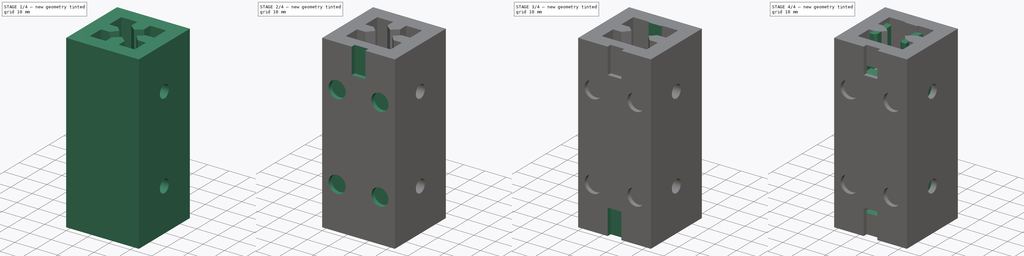
[diagram: build sequence overview — one tinted view per stage of 4, left to right]
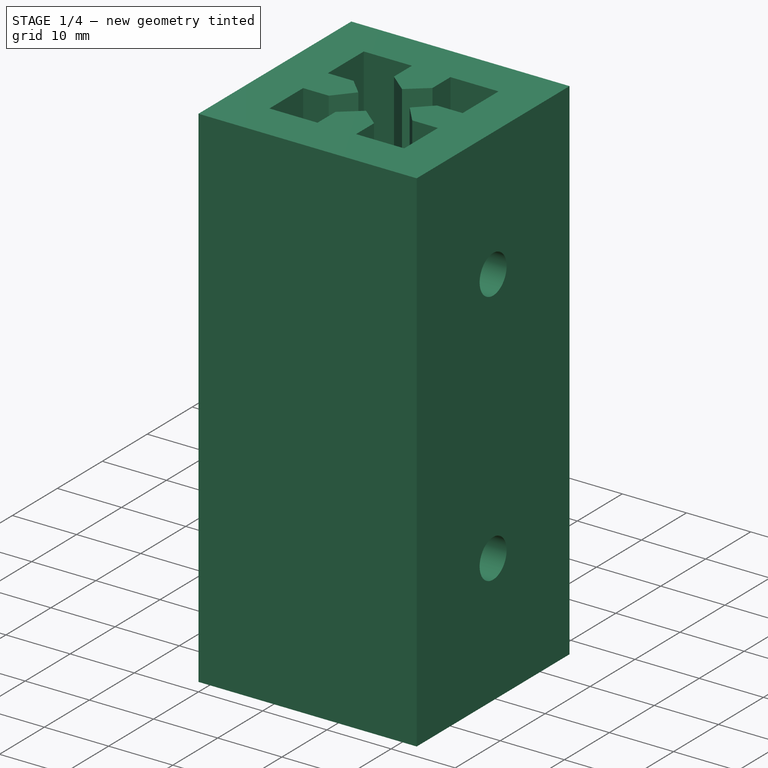
[diagram: stage 1 of 4 — iso view after this stage's code; geometry added in this stage tinted green]
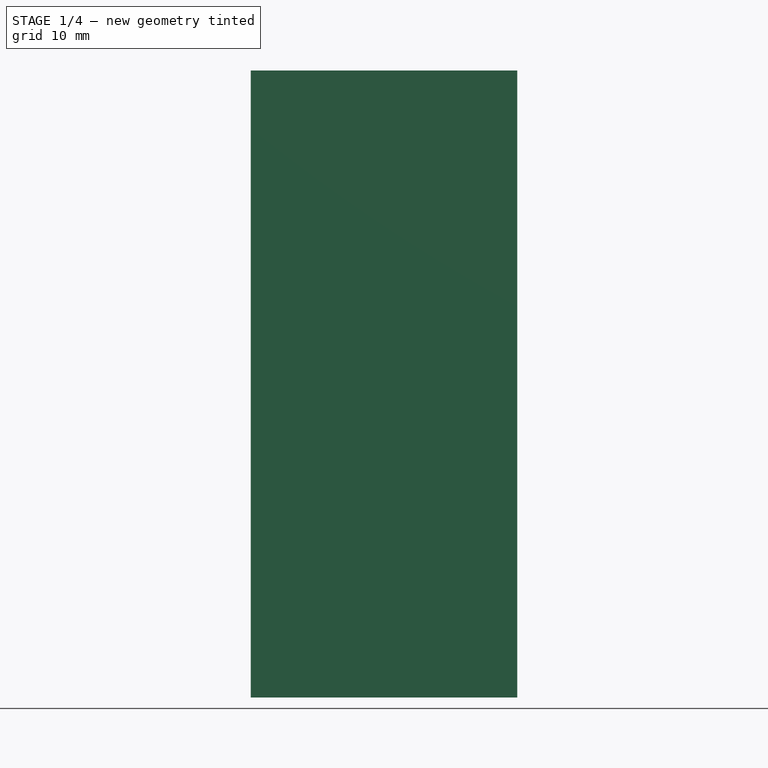
[diagram: stage 1 of 4 — front view after this stage's code; geometry added in this stage tinted green]
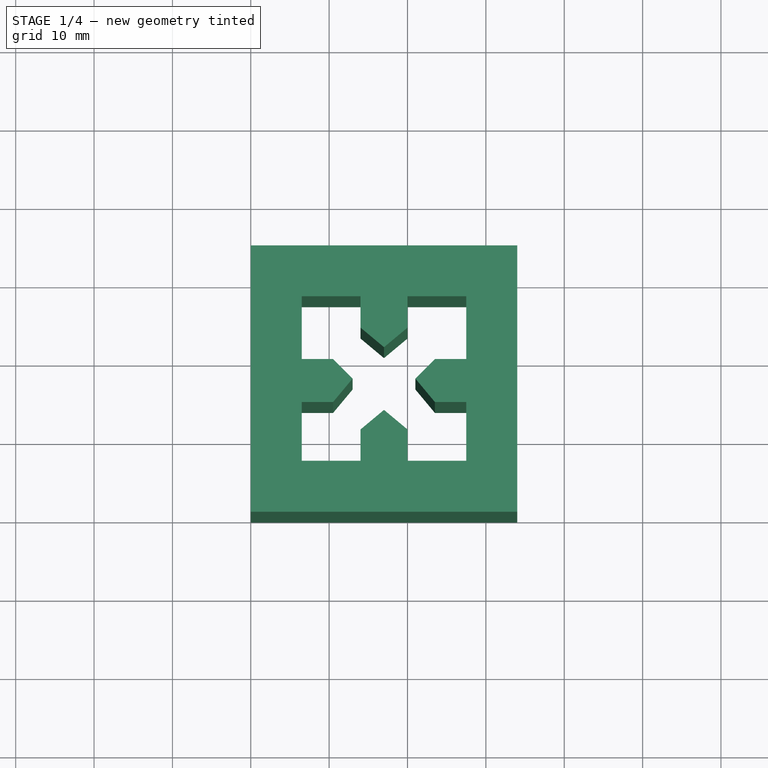
[diagram: stage 1 of 4 — top view after this stage's code; geometry added in this stage tinted green]
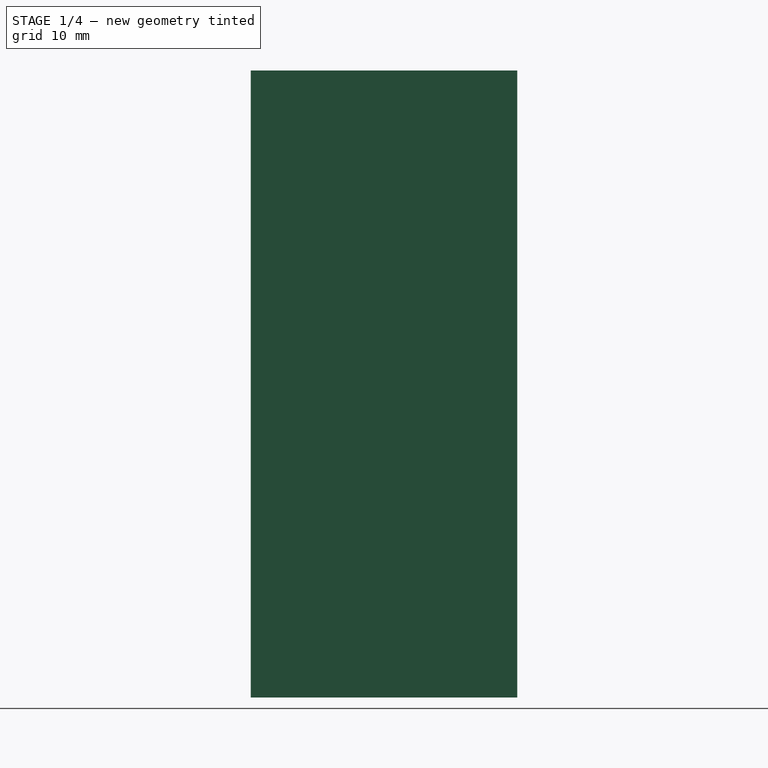
[diagram: stage 1 of 4 — right view after this stage's code; geometry added in this stage tinted green]
FCSTD DOCUMENT  (FreeCAD 0.19R17798 (Git))
Label: ts4c
License: All rights reserved
LicenseURL: http://en.wikipedia.org/wiki/All_rights_reserved
objects: Sketcher::SketchObject×11, PartDesign::Pocket×10, Part::Feature×2, PartDesign::Pad×1, PartDesign::Chamfer×1, PartDesign::Body×1, Part::Fuse×1, Part::MultiFuse×1
note: 39 computed .brp shape members not serialized (recipe doc carries the construction recipe); baked Part::Feature solids carry a one-line shape summary decoded from their .brp

FEATURE [Sketcher::SketchObject] Sketch
  MapMode = 5
  Support = -> [XY_Plane]
  sketch-geometry (4):
    g0: LineSegment StartX=0 StartY=34 StartZ=0 EndX=34 EndY=34 EndZ=0
    g1: LineSegment StartX=34 StartY=34 StartZ=0 EndX=34 EndY=0 EndZ=0
    g2: LineSegment StartX=34 StartY=0 StartZ=0 EndX=0 EndY=0 EndZ=0
    g3: LineSegment StartX=0 StartY=0 StartZ=0 EndX=0 EndY=34 EndZ=0
  constraints (11):
    c: Coincident(g0,g1)
    c: Coincident(g1,g2)
    c: Coincident(g2,g3)
    c: Coincident(g3,g0)
    c: Horizontal(g0)
    c: Horizontal(g2)
    c: Vertical(g1)
    c: Vertical(g3)
    c: DistanceX(g0,g0) = 34
    c: DistanceY(g3,g3) = 34
    c: Coincident(g2,g-1)
FEATURE [PartDesign::Pad] Pad
  Length = 80
  Length2 = 100
  Profile = -> Sketch
  Type = 0
FEATURE [Sketcher::SketchObject] Sketch001
  MapMode = 5
  Placement = pos=(0,0,80) rot=(0,0,1;0rad)
  Support = -> [Pad]
  sketch-geometry (24):
    g0: LineSegment StartX=6.5 StartY=27.5 StartZ=0 EndX=14 EndY=27.5 EndZ=0
    g1: LineSegment StartX=14 StartY=27.5 StartZ=0 EndX=14 EndY=23.5 EndZ=0
    g2: LineSegment StartX=14 StartY=23.5 StartZ=0 EndX=17 EndY=21 EndZ=0
    g3: LineSegment StartX=17 StartY=21 StartZ=0 EndX=20 EndY=23.5 EndZ=0
    g4: LineSegment StartX=20 StartY=23.5 StartZ=0 EndX=20 EndY=27.5 EndZ=0
    g5: LineSegment StartX=20 StartY=27.5 StartZ=0 EndX=27.5 EndY=27.5 EndZ=0
    g6: LineSegment StartX=27.5 StartY=27.5 StartZ=0 EndX=27.5 EndY=19.5 EndZ=0
    g7: LineSegment StartX=27.5 StartY=19.5 StartZ=0 EndX=23.5 EndY=19.5 EndZ=0
    g8: LineSegment StartX=23.5 StartY=19.5 StartZ=0 EndX=21 EndY=17 EndZ=0
    g9: LineSegment StartX=21 StartY=17 StartZ=0 EndX=23.5 EndY=14 EndZ=0
    g10: LineSegment StartX=23.5 StartY=14 StartZ=0 EndX=27.5 EndY=14 EndZ=0
    g11: LineSegment StartX=27.5 StartY=14 StartZ=0 EndX=27.5 EndY=6.5 EndZ=0
    g12: LineSegment StartX=27.5 StartY=6.5 StartZ=0 EndX=20 EndY=6.5 EndZ=0
    g13: LineSegment StartX=20 StartY=6.5 StartZ=0 EndX=20 EndY=10.5 EndZ=0
    g14: LineSegment StartX=20 StartY=10.5 StartZ=0 EndX=17 EndY=13 EndZ=0
    g15: LineSegment StartX=17 StartY=13 StartZ=0 EndX=14 EndY=10.5 EndZ=0
    g16: LineSegment StartX=14 StartY=10.5 StartZ=0 EndX=14 EndY=6.5 EndZ=0
    g17: LineSegment StartX=14 StartY=6.5 StartZ=0 EndX=6.5 EndY=6.5 EndZ=0
    g18: LineSegment StartX=6.5 StartY=6.5 StartZ=0 EndX=6.5 EndY=14 EndZ=0
    g19: LineSegment StartX=6.5 StartY=14 StartZ=0 EndX=10.5 EndY=14 EndZ=0
    g20: LineSegment StartX=10.5 StartY=14 StartZ=0 EndX=13 EndY=17 EndZ=0
    g21: LineSegment StartX=13 StartY=17 StartZ=0 EndX=10.5 EndY=19.5 EndZ=0
    g22: LineSegment StartX=10.5 StartY=19.5 StartZ=0 EndX=6.5 EndY=19.5 EndZ=0
    g23: LineSegment StartX=6.5 StartY=19.5 StartZ=0 EndX=6.5 EndY=27.5 EndZ=0
  constraints (72):
    c: Coincident(g0,g1)
    c: Coincident(g1,g2)
    c: Coincident(g2,g3)
    c: Coincident(g3,g4)
    c: Coincident(g4,g5)
    c: Coincident(g5,g6)
    c: Coincident(g6,g7)
    c: Coincident(g7,g8)
    c: Coincident(g8,g9)
    c: Coincident(g9,g10)
    c: Coincident(g10,g11)
    c: Coincident(g11,g12)
    c: Coincident(g12,g13)
    c: Coincident(g13,g14)
    c: Coincident(g14,g15)
    c: Coincident(g15,g16)
    c: Coincident(g16,g17)
    c: Coincident(g17,g18)
    c: Coincident(g18,g19)
    c: Coincident(g19,g20)
    c: Coincident(g20,g21)
    c: Coincident(g21,g22)
    c: Coincident(g22,g23)
    c: Coincident(g23,g0)
    c: DistanceY(g-1,g0) = 27.5
    c: DistanceY(g0,g0) = 0
    c: DistanceY(g4,g0) = 0
    c: DistanceY(g5,g5) = 0
    c: DistanceX(g-1,g17) = 6.5
    c: DistanceY(g-1,g17) = 6.5
    c: DistanceX(g-1,g0) = 6.5
    c: DistanceX(g-1,g5) = 27.5
    c: DistanceY(g11,g17) = 0
    c: DistanceY(g12,g17) = 0
    c: DistanceY(g16,g17) = 0
    c: DistanceX(g5,g11) = 0
    c: DistanceX(g5,g6) = 0
    c: DistanceX(g5,g10) = 0
    c: DistanceX(g0,g0) = 7.5
    c: DistanceX(g0,g4) = 6
    c: DistanceX(g22,g0) = 0
    c: DistanceX(g22,g1) = 7.5
    c: DistanceX(g1,g3) = 6
    c: DistanceX(g17,g2) = 10.5
    c: DistanceY(g17,g22) = 13
    c: DistanceY(g17,g18) = 7.5
    c: DistanceY(g22,g21) = 0
    c: DistanceY(g21,g7) = 0
    c: DistanceX(g17,g16) = 7.5
    c: DistanceX(g16,g12) = 6
    c: DistanceX(g15,g16) = 0
    c: DistanceX(g12,g13) = 0
    c: DistanceY(g17,g15) = 4
    c: DistanceX(g17,g18) = 0
    c: DistanceY(g15,g13) = 0
    c: DistanceY(g17,g14) = 6.5
    c: DistanceX(g17,g14) = 10.5
    c: DistanceX(g22,g21) = 4
    c: DistanceX(g19,g21) = 0
    c: DistanceX(g22,g20) = 6.5
    c: DistanceY(g17,g20) = 10.5
    c: DistanceY(g19,g10) = 0
    c: DistanceY(g18,g9) = 0
    c: DistanceY(g18,g19) = 0
    c: DistanceY(g21,g6) = 0
    c: DistanceY(g1,g0) = 4
    c: DistanceY(g3,g1) = 0
    c: DistanceY(g2,g0) = 6.5
    c: DistanceX(g7,g6) = 4
    c: DistanceX(g9,g7) = 0
    c: DistanceX(g8,g6) = 6.5
    c: DistanceY(g20,g8) = 0
FEATURE [PartDesign::Pocket] Pocket
  BaseFeature = -> Pad
  Length = 80
  Length2 = 100
  Profile = -> Sketch001
  Type = 0
FEATURE [Sketcher::SketchObject] Sketch002
  MapMode = 5
  Placement = pos=(0,0,0) rot=(0.57735,-0.57735,-0.57735;2.0944rad)
  Support = -> [Pocket]
  sketch-geometry (2):
    g0: Circle CenterX=-17 CenterY=60 CenterZ=0 NormalX=0 NormalY=0 NormalZ=1 AngleXU=0 Radius=3
    g1: Circle CenterX=-17 CenterY=20 CenterZ=0 NormalX=0 NormalY=0 NormalZ=1 AngleXU=0 Radius=3
  constraints (6):
    c: DistanceX(g1,g-1) = 17
    c: DistanceY(g-1,g1) = 20
    c: DistanceX(g0,g1) = 0
    c: DistanceY(g-1,g0) = 60
    c: Radius(g0) = 3
    c: Radius(g1) = 3
FEATURE [PartDesign::Pocket] Pocket001
  BaseFeature = -> Pocket
  Length = 4
  Length2 = 100
  Profile = -> Sketch002
  Type = 0
FEATURE [Sketcher::SketchObject] Sketch003
  MapMode = 5
  Placement = pos=(34,0,0) rot=(0.57735,0.57735,0.57735;2.0944rad)
  Support = -> [Pocket001]
  sketch-geometry (2):
    g0: Circle CenterX=17 CenterY=60 CenterZ=0 NormalX=0 NormalY=0 NormalZ=1 AngleXU=0 Radius=3
    g1: Circle CenterX=17 CenterY=20 CenterZ=0 NormalX=0 NormalY=0 NormalZ=1 AngleXU=0 Radius=3
  constraints (6):
    c: DistanceX(g-1,g1) = 17
    c: DistanceX(g0,g1) = 0
    c: DistanceY(g-1,g1) = 20
    c: DistanceY(g-1,g0) = 60
    c: Radius(g0) = 3
    c: Radius(g1) = 3
FEATURE [PartDesign::Pocket] Pocket002
  BaseFeature = -> Pocket001
  Length = 4
  Length2 = 100
  Profile = -> Sketch003
  Type = 0
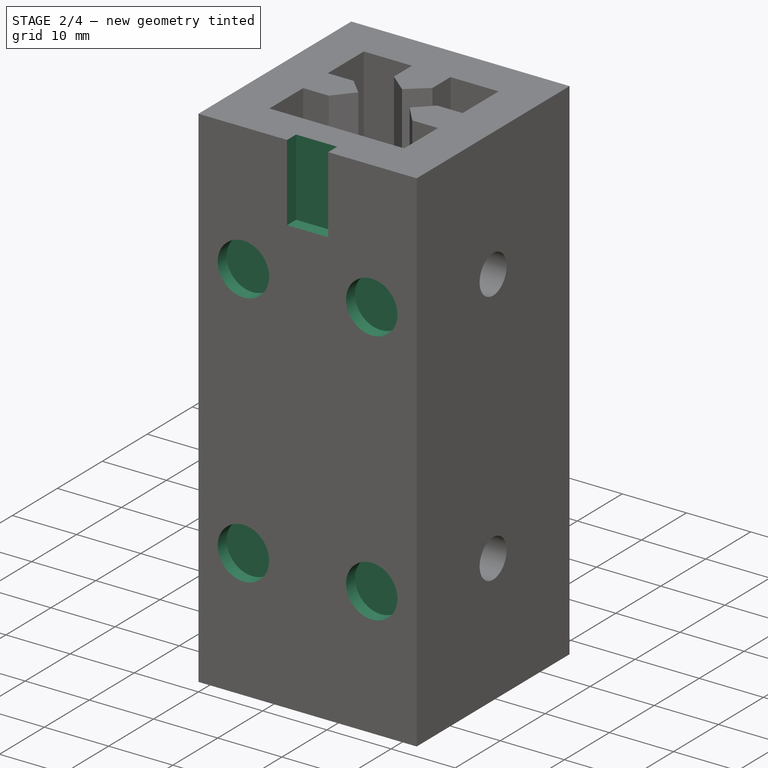
[diagram: stage 2 of 4 — iso view after this stage's code; geometry added in this stage tinted green]
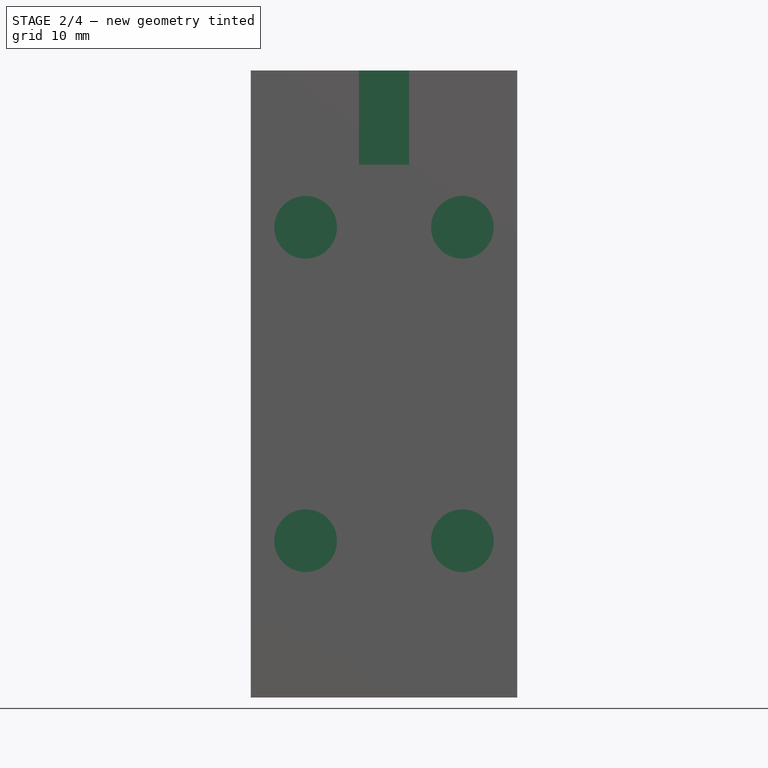
[diagram: stage 2 of 4 — front view after this stage's code; geometry added in this stage tinted green]
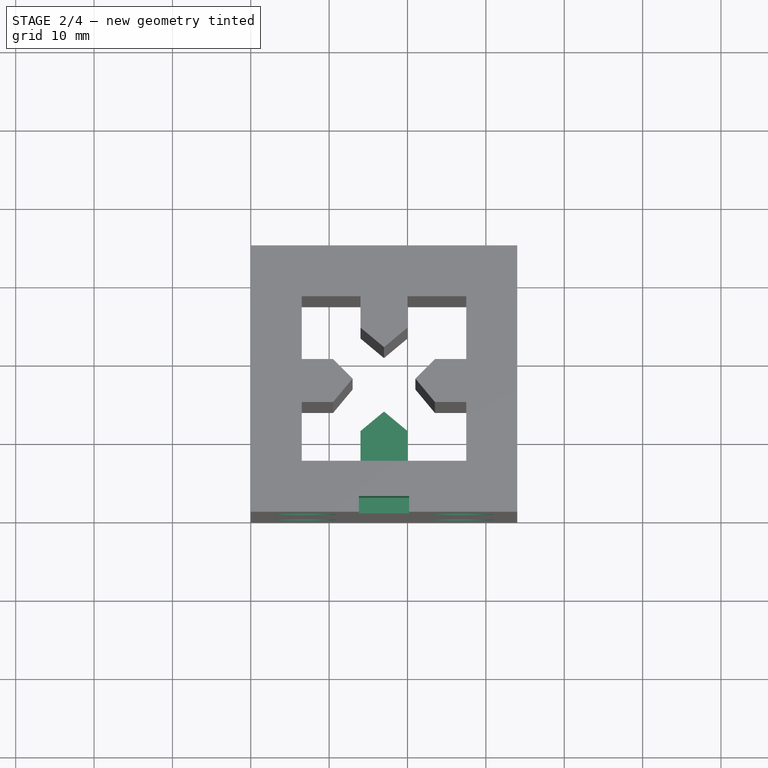
[diagram: stage 2 of 4 — top view after this stage's code; geometry added in this stage tinted green]
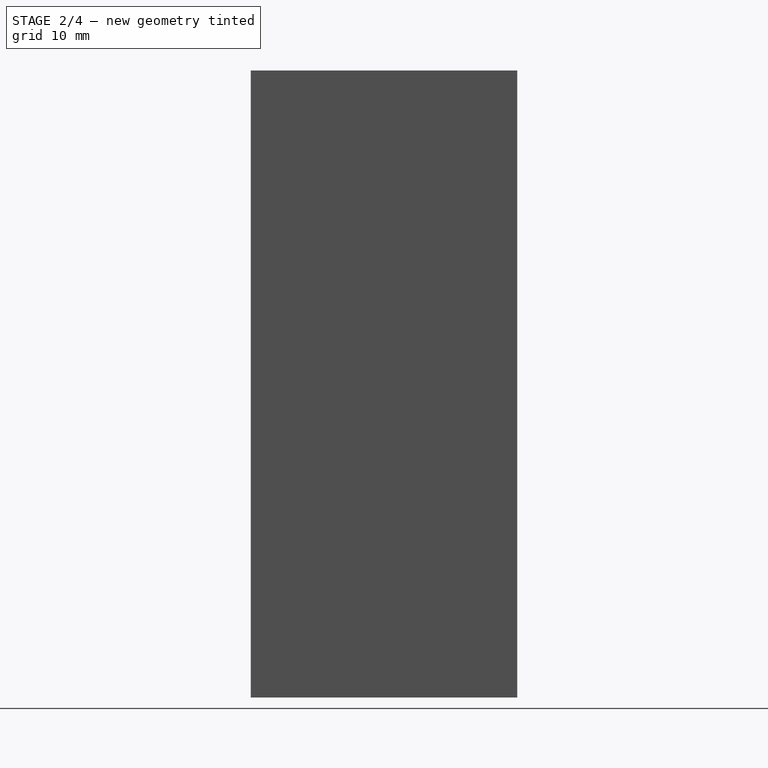
[diagram: stage 2 of 4 — right view after this stage's code; geometry added in this stage tinted green]
FEATURE [Sketcher::SketchObject] Sketch004
  MapMode = 5
  Placement = pos=(0,34,0) rot=(0,0.707107,0.707107;3.14159rad)
  Support = -> [Pocket002]
  sketch-geometry (4):
    g0: Circle CenterX=-27 CenterY=60 CenterZ=0 NormalX=0 NormalY=0 NormalZ=1 AngleXU=0 Radius=4
    g1: Circle CenterX=-7 CenterY=60 CenterZ=0 NormalX=0 NormalY=0 NormalZ=1 AngleXU=0 Radius=4
    g2: Circle CenterX=-27 CenterY=20 CenterZ=0 NormalX=0 NormalY=0 NormalZ=1 AngleXU=0 Radius=4
    g3: Circle CenterX=-7 CenterY=20 CenterZ=0 NormalX=0 NormalY=0 NormalZ=1 AngleXU=0 Radius=4
  constraints (12):
    c: DistanceY(g-1,g3) = 20
    c: DistanceY(g3,g2) = 0
    c: DistanceY(g-1,g1) = 60
    c: DistanceY(g1,g0) = 0
    c: DistanceX(g3,g-1) = 7
    c: DistanceX(g2,g3) = 20
    c: DistanceX(g1,g3) = 0
    c: DistanceX(g0,g2) = 0
    c: Radius(g0) = 4
    c: Radius(g1) = 4
    c: Radius(g3) = 4
    c: Radius(g2) = 4
FEATURE [PartDesign::Pocket] Pocket003
  BaseFeature = -> Pocket002
  Length = 2
  Length2 = 100
  Profile = -> Sketch004
  Type = 0
FEATURE [Sketcher::SketchObject] Sketch005
  MapMode = 5
  Placement = pos=(0,0,0) rot=(1,0,0;1.5708rad)
  Support = -> [Pocket003]
  sketch-geometry (4):
    g0: Circle CenterX=7 CenterY=60 CenterZ=0 NormalX=0 NormalY=0 NormalZ=1 AngleXU=0 Radius=4
    g1: Circle CenterX=27 CenterY=60 CenterZ=0 NormalX=0 NormalY=0 NormalZ=1 AngleXU=0 Radius=4
    g2: Circle CenterX=7 CenterY=20 CenterZ=0 NormalX=0 NormalY=0 NormalZ=1 AngleXU=0 Radius=4
    g3: Circle CenterX=27 CenterY=20 CenterZ=0 NormalX=0 NormalY=0 NormalZ=1 AngleXU=0 Radius=4
  constraints (12):
    c: DistanceY(g-1,g3) = 20
    c: DistanceY(g3,g2) = 0
    c: DistanceY(g-1,g0) = 60
    c: DistanceY(g0,g1) = 0
    c: DistanceX(g-1,g2) = 7
    c: DistanceX(g2,g0) = 0
    c: DistanceX(g2,g3) = 20
    c: DistanceX(g1,g3) = 0
    c: Radius(g0) = 4
    c: Equal(g0,g1)
    c: Equal(g0,g3)
    c: Equal(g0,g2)
FEATURE [PartDesign::Pocket] Pocket004
  BaseFeature = -> Pocket003
  Length = 2
  Length2 = 100
  Profile = -> Sketch005
  Type = 0
FEATURE [Sketcher::SketchObject] Sketch006
  MapMode = 5
  Placement = pos=(0,0,80) rot=(0,0,1;0rad)
  Support = -> [Pocket004]
  sketch-geometry (8):
    g0: LineSegment StartX=13.8 StartY=2 StartZ=0 EndX=20.2 EndY=2 EndZ=0
    g1: LineSegment StartX=20.2 StartY=2 StartZ=0 EndX=20.2 EndY=0 EndZ=0
    g2: LineSegment StartX=20.2 StartY=0 StartZ=0 EndX=13.8 EndY=0 EndZ=0
    g3: LineSegment StartX=13.8 StartY=0 StartZ=0 EndX=13.8 EndY=2 EndZ=0
    g4: LineSegment StartX=13.8 StartY=13.5 StartZ=0 EndX=20.2 EndY=13.5 EndZ=0
    g5: LineSegment StartX=20.2 StartY=13.5 StartZ=0 EndX=20.2 EndY=6.5 EndZ=0
    g6: LineSegment StartX=20.2 StartY=6.5 StartZ=0 EndX=13.8 EndY=6.5 EndZ=0
    g7: LineSegment StartX=13.8 StartY=6.5 StartZ=0 EndX=13.8 EndY=13.5 EndZ=0
  constraints (24):
    c: Coincident(g0,g1)
    c: Coincident(g1,g2)
    c: Coincident(g2,g3)
    c: Coincident(g3,g0)
    c: Horizontal(g0)
    c: Horizontal(g2)
    c: Vertical(g1)
    c: Vertical(g3)
    c: Coincident(g4,g5)
    c: Coincident(g5,g6)
    c: Coincident(g6,g7)
    c: Coincident(g7,g4)
    c: Horizontal(g4)
    c: Horizontal(g6)
    c: Vertical(g5)
    c: Vertical(g7)
    c: DistanceY(g3,g3) = 2
    c: DistanceX(g0,g0) = 6.4
    c: DistanceY(g-1,g2) = 0
    c: DistanceX(g6,g6) = 6.4
    c: DistanceY(g-1,g6) = 6.5
    c: DistanceX(g-1,g2) = 13.8
    c: DistanceX(g-1,g6) = 13.8
    c: DistanceY(g5,g5) = 7
FEATURE [PartDesign::Pocket] Pocket005
  BaseFeature = -> Pocket004
  Length = 12
  Length2 = 100
  Profile = -> Sketch006
  Type = 0
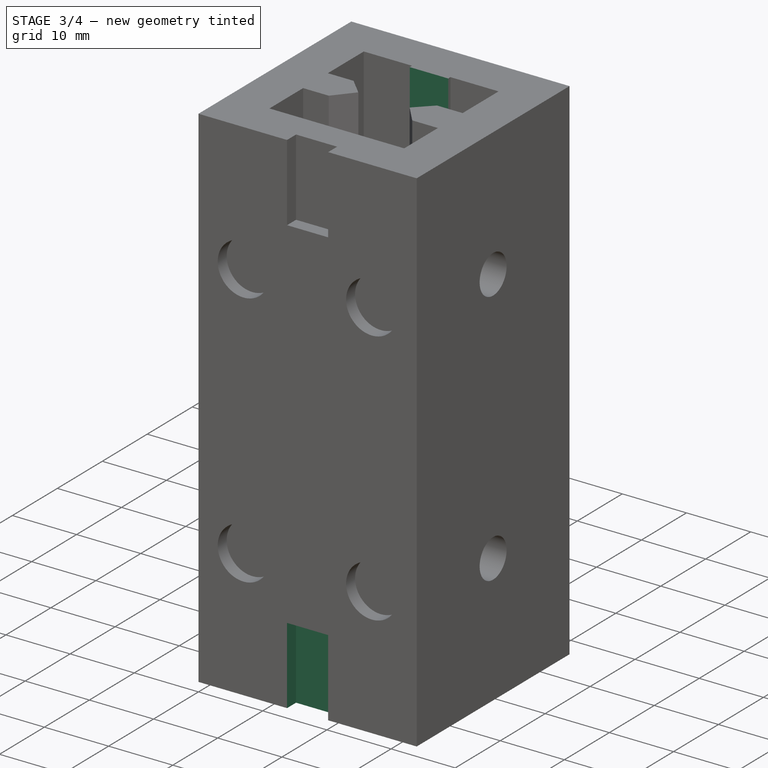
[diagram: stage 3 of 4 — iso view after this stage's code; geometry added in this stage tinted green]
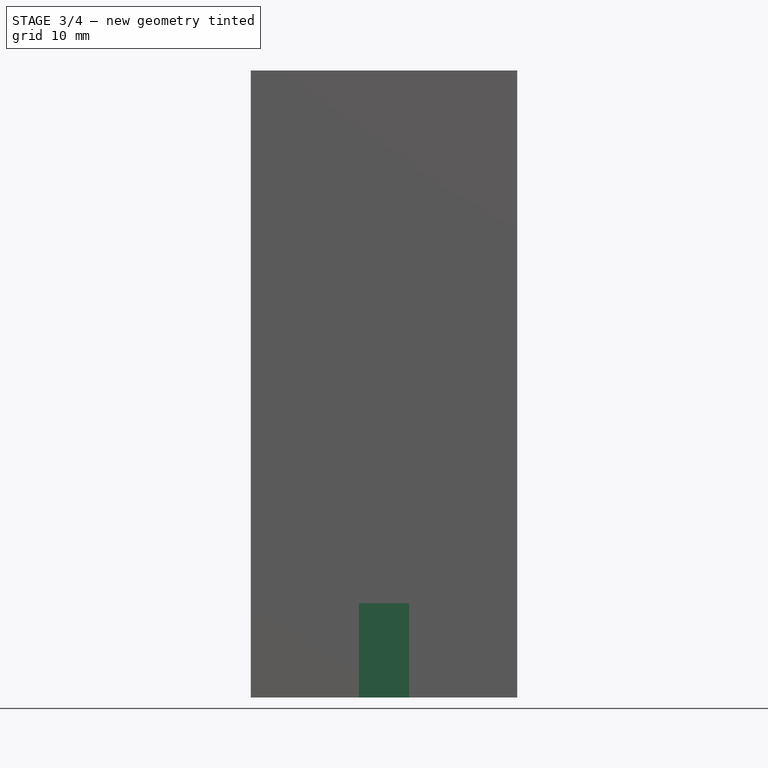
[diagram: stage 3 of 4 — front view after this stage's code; geometry added in this stage tinted green]
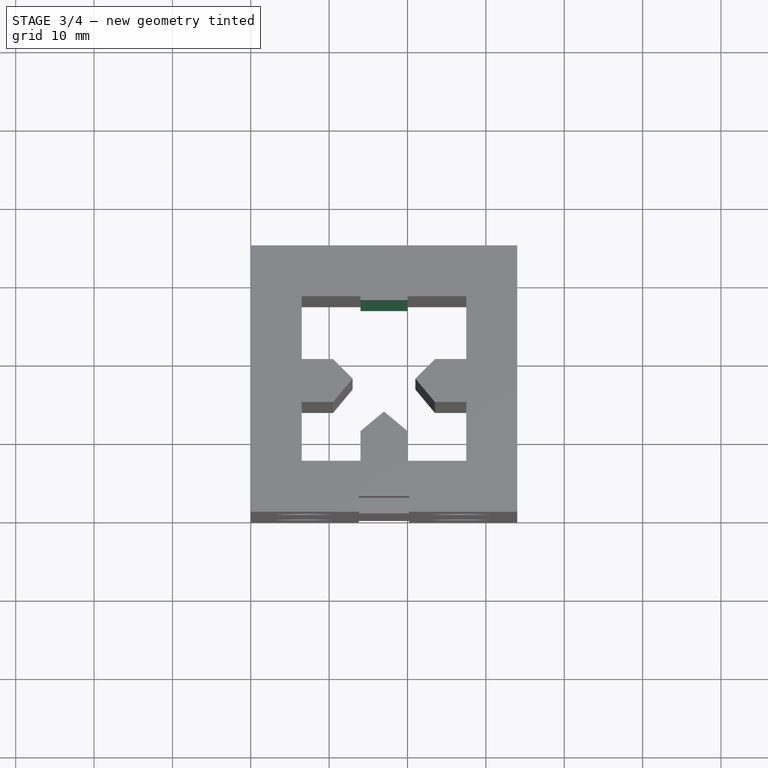
[diagram: stage 3 of 4 — top view after this stage's code; geometry added in this stage tinted green]
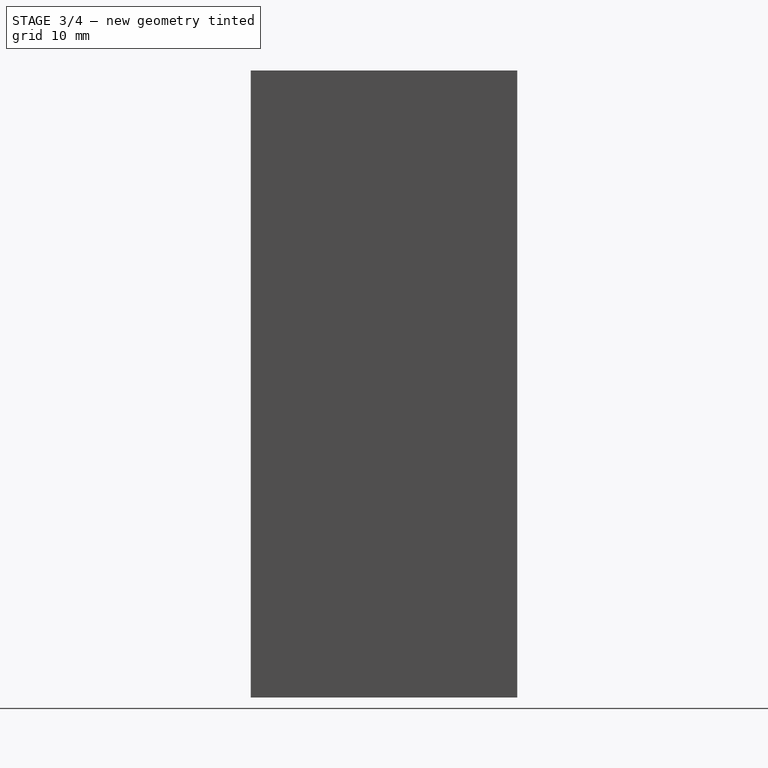
[diagram: stage 3 of 4 — right view after this stage's code; geometry added in this stage tinted green]
FEATURE [Sketcher::SketchObject] Sketch007
  MapMode = 5
  Placement = pos=(0,0,0) rot=(1,0,0;3.14159rad)
  Support = -> [Pocket005]
  sketch-geometry (8):
    g0: LineSegment StartX=13.8 StartY=0 StartZ=0 EndX=20.2 EndY=0 EndZ=0
    g1: LineSegment StartX=20.2 StartY=0 StartZ=0 EndX=20.2 EndY=-2 EndZ=0
    g2: LineSegment StartX=20.2 StartY=-2 StartZ=0 EndX=13.8 EndY=-2 EndZ=0
    g3: LineSegment StartX=13.8 StartY=-2 StartZ=0 EndX=13.8 EndY=0 EndZ=0
    g4: LineSegment StartX=14 StartY=-6.5 StartZ=0 EndX=20 EndY=-6.5 EndZ=0
    g5: LineSegment StartX=20 StartY=-6.5 StartZ=0 EndX=20 EndY=-13.1 EndZ=0
    g6: LineSegment StartX=20 StartY=-13.1 StartZ=0 EndX=14 EndY=-13.1 EndZ=0
    g7: LineSegment StartX=14 StartY=-13.1 StartZ=0 EndX=14 EndY=-6.5 EndZ=0
  constraints (24):
    c: Coincident(g0,g1)
    c: Coincident(g1,g2)
    c: Coincident(g2,g3)
    c: Coincident(g3,g0)
    c: Horizontal(g0)
    c: Horizontal(g2)
    c: Vertical(g1)
    c: Vertical(g3)
    c: Coincident(g4,g5)
    c: Coincident(g5,g6)
    c: Coincident(g6,g7)
    c: Coincident(g7,g4)
    c: Horizontal(g4)
    c: Horizontal(g6)
    c: Vertical(g5)
    c: Vertical(g7)
    c: DistanceX(g4,g4) = 6
    c: DistanceY(g5,g5) = 6.6
    c: DistanceY(g1,g1) = 2
    c: DistanceX(g0,g0) = 6.4
    c: DistanceY(g0,g-1) = 0
    c: DistanceX(g-1,g0) = 13.8
    c: DistanceX(g-1,g4) = 14
    c: DistanceY(g4,g-1) = 6.5
FEATURE [PartDesign::Pocket] Pocket006
  BaseFeature = -> Pocket005
  Length = 12
  Length2 = 100
  Profile = -> Sketch007
  Type = 0
FEATURE [PartDesign::Chamfer] Chamfer
  Base = -> Pocket006 [Edge104]
  BaseFeature = -> Pocket006
  Size = 1.98
FEATURE [Sketcher::SketchObject] Sketch008
  MapMode = 5
  Placement = pos=(0,0,0) rot=(1,0,0;3.14159rad)
  Support = -> [Chamfer]
  sketch-geometry (4):
    g0: LineSegment StartX=13 StartY=-22 StartZ=0 EndX=21 EndY=-22 EndZ=0
    g1: LineSegment StartX=21 StartY=-22 StartZ=0 EndX=21 EndY=-27 EndZ=0
    g2: LineSegment StartX=21 StartY=-27 StartZ=0 EndX=13 EndY=-27 EndZ=0
    g3: LineSegment StartX=13 StartY=-27 StartZ=0 EndX=13 EndY=-22 EndZ=0
  constraints (12):
    c: Coincident(g0,g1)
    c: Coincident(g1,g2)
    c: Coincident(g2,g3)
    c: Coincident(g3,g0)
    c: Horizontal(g0)
    c: Horizontal(g2)
    c: Vertical(g1)
    c: Vertical(g3)
    c: DistanceX(g0,g0) = 8
    c: DistanceY(g1,g1) = 5
    c: DistanceY(g0,g-1) = 22
    c: DistanceX(g-1,g0) = 13
FEATURE [PartDesign::Pocket] Pocket007
  BaseFeature = -> Chamfer
  Length = 80
  Length2 = 100
  Profile = -> Sketch008
  Type = 0
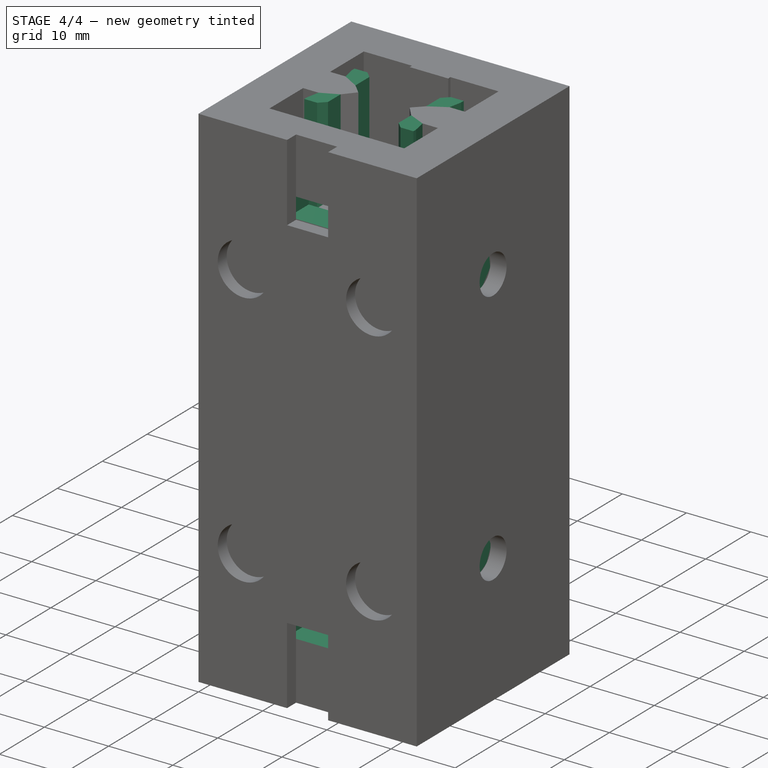
[diagram: stage 4 of 4 — iso view after this stage's code; geometry added in this stage tinted green]
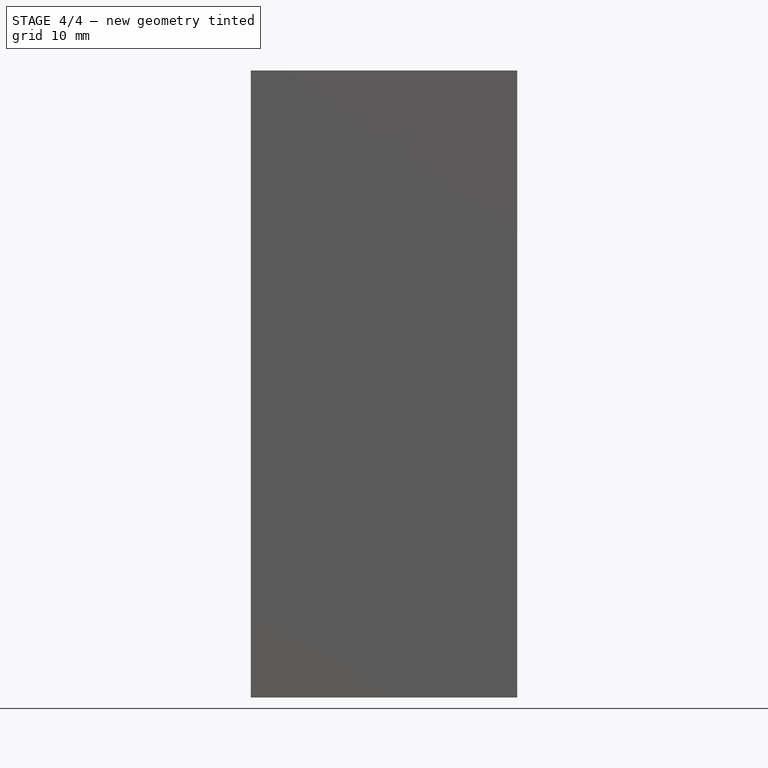
[diagram: stage 4 of 4 — front view after this stage's code; geometry added in this stage tinted green]
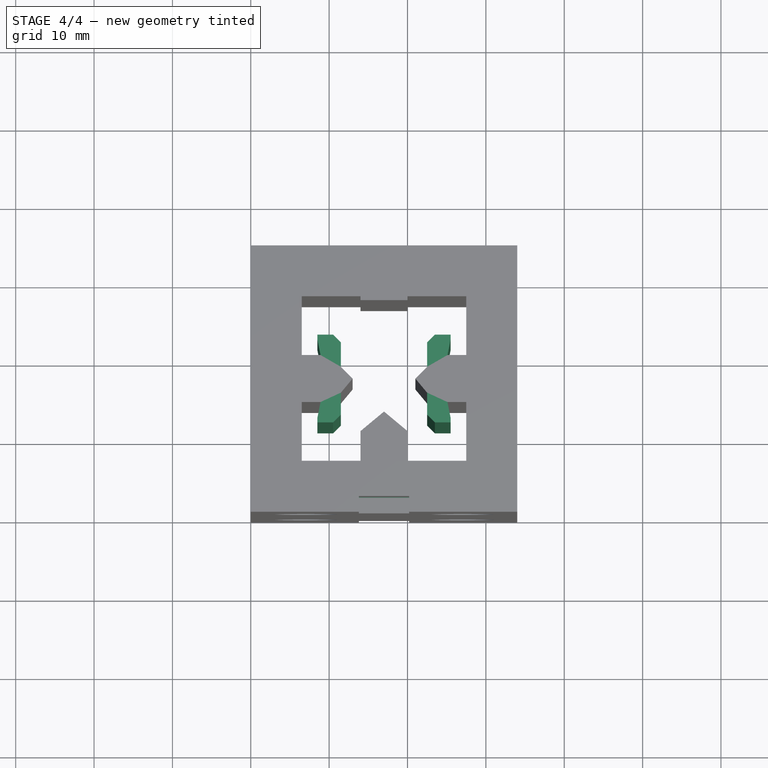
[diagram: stage 4 of 4 — top view after this stage's code; geometry added in this stage tinted green]
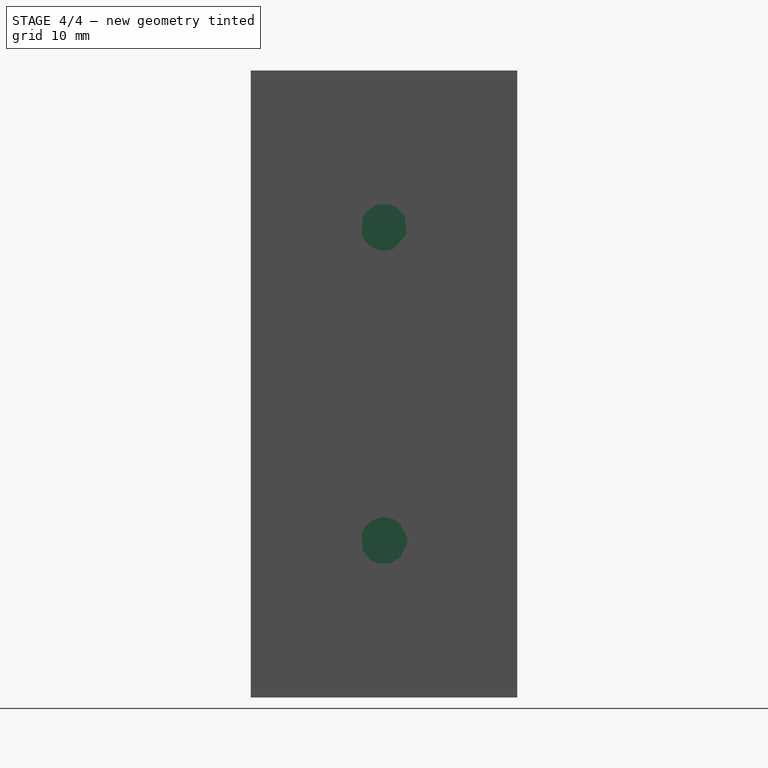
[diagram: stage 4 of 4 — right view after this stage's code; geometry added in this stage tinted green]
FEATURE [Sketcher::SketchObject] Sketch009
  MapMode = 5
  Placement = pos=(0,2,0) rot=(1,0,0;1.5708rad)
  Support = -> [Pocket007]
  sketch-geometry (4):
    g0: LineSegment StartX=12.6227 StartY=71.2555 StartZ=0 EndX=21.8111 EndY=71.2555 EndZ=0
    g1: LineSegment StartX=21.8111 StartY=71.2555 StartZ=0 EndX=21.8111 EndY=68.118 EndZ=0
    g2: LineSegment StartX=21.8111 StartY=68.118 StartZ=0 EndX=12.6227 EndY=68.118 EndZ=0
    g3: LineSegment StartX=12.6227 StartY=68.118 StartZ=0 EndX=12.6227 EndY=71.2555 EndZ=0
  constraints (8):
    c: Coincident(g0,g1)
    c: Coincident(g1,g2)
    c: Coincident(g2,g3)
    c: Coincident(g3,g0)
    c: Horizontal(g0)
    c: Horizontal(g2)
    c: Vertical(g1)
    c: Vertical(g3)
FEATURE [PartDesign::Pocket] Pocket008
  BaseFeature = -> Pocket007
  Length = 8
  Length2 = 100
  Profile = -> Sketch009
  Type = 0
FEATURE [Sketcher::SketchObject] Sketch010
  MapMode = 5
  Placement = pos=(0,2,0) rot=(1,0,0;1.5708rad)
  Support = -> [Pocket008]
  sketch-geometry (4):
    g0: LineSegment StartX=12.4607 StartY=11.9141 StartZ=0 EndX=20.7673 EndY=11.9141 EndZ=0
    g1: LineSegment StartX=20.7673 StartY=11.9141 StartZ=0 EndX=20.7673 EndY=8.99562 EndZ=0
    g2: LineSegment StartX=20.7673 StartY=8.99562 StartZ=0 EndX=12.4607 EndY=8.99562 EndZ=0
    g3: LineSegment StartX=12.4607 StartY=8.99562 StartZ=0 EndX=12.4607 EndY=11.9141 EndZ=0
  constraints (8):
    c: Coincident(g0,g1)
    c: Coincident(g1,g2)
    c: Coincident(g2,g3)
    c: Coincident(g3,g0)
    c: Horizontal(g0)
    c: Horizontal(g2)
    c: Vertical(g1)
    c: Vertical(g3)
FEATURE [PartDesign::Pocket] Pocket009
  BaseFeature = -> Pocket008
  Length = 8
  Length2 = 100
  Profile = -> Sketch010
  Type = 0
FEATURE [PartDesign::Body] Body
  Group = -> [Sketch,Pad,Sketch001,Pocket,Sketch002,Pocket001,Sketch003,Pocket002,Sketch004,Pocket003,Sketch005,Pocket004,Sketch006,Pocket005,Sketch007,Pocket006,Chamfer,Sketch008,Pocket007,Sketch009,Pocket008,Sketch010,Pocket009]
  Origin = -> BodyOrigin
  Tip = -> Pocket009
FEATURE [Part::Feature] Body001  label="sub1"
  Placement = pos=(11.5,11.4,0) rot=(0,0,1;1.5708rad)
  shape: bbox 9 x 11.2 x 80 mm, 14 faces (baked)
FEATURE [Part::Feature] Body002  label="sub2"
  Placement = pos=(22.5,22.6,0) rot=(0,0,-1;1.5708rad)
  shape: bbox 9 x 11.2 x 80 mm, 14 faces (baked)
FEATURE [Part::Fuse] Fusion
  Base = -> Body
  Refine = true
  Tool = -> Body001
FEATURE [Part::MultiFuse] Fusion001
  Refine = true
  Shapes = -> [Body002,Fusion]
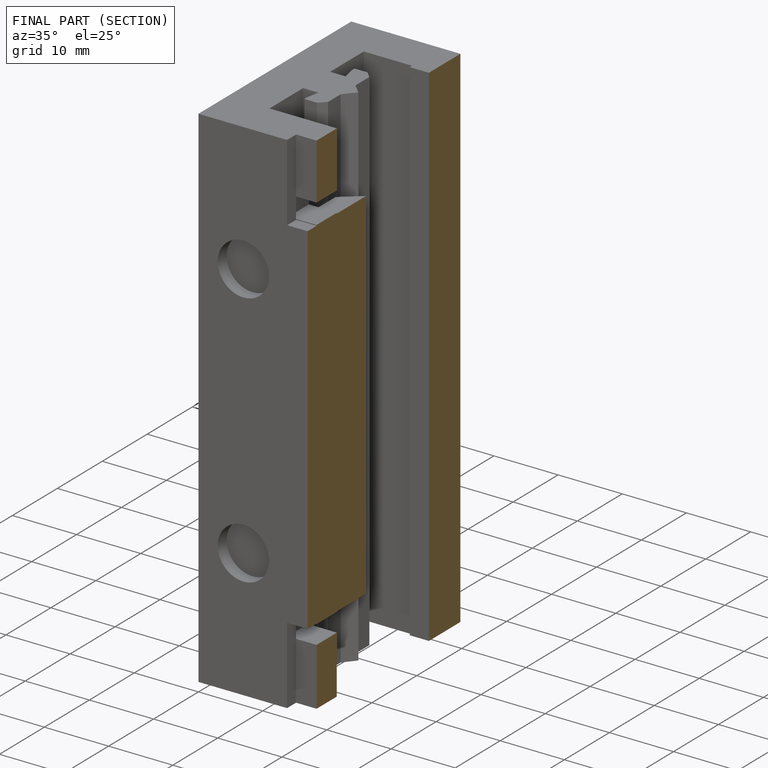
[diagram: finished part — half-section view (interior)]
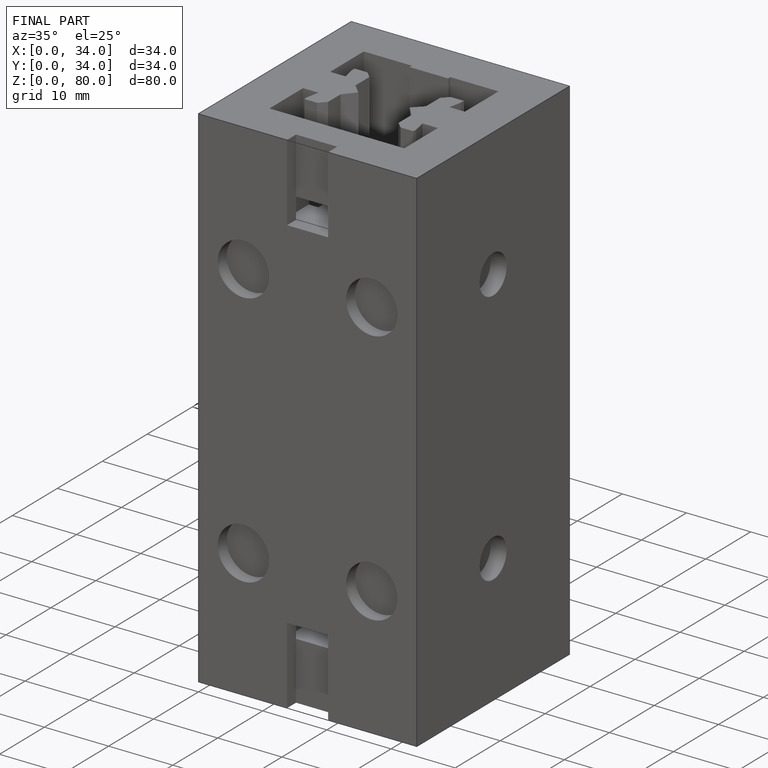
[diagram: finished part — iso view with bounding-box wireframe]
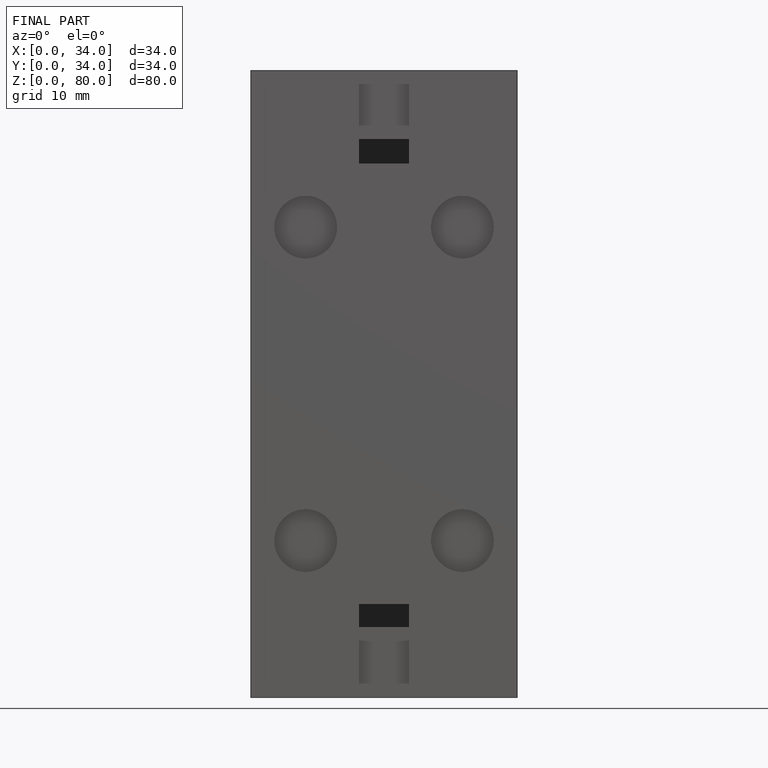
[diagram: finished part — front view with bounding-box wireframe]
